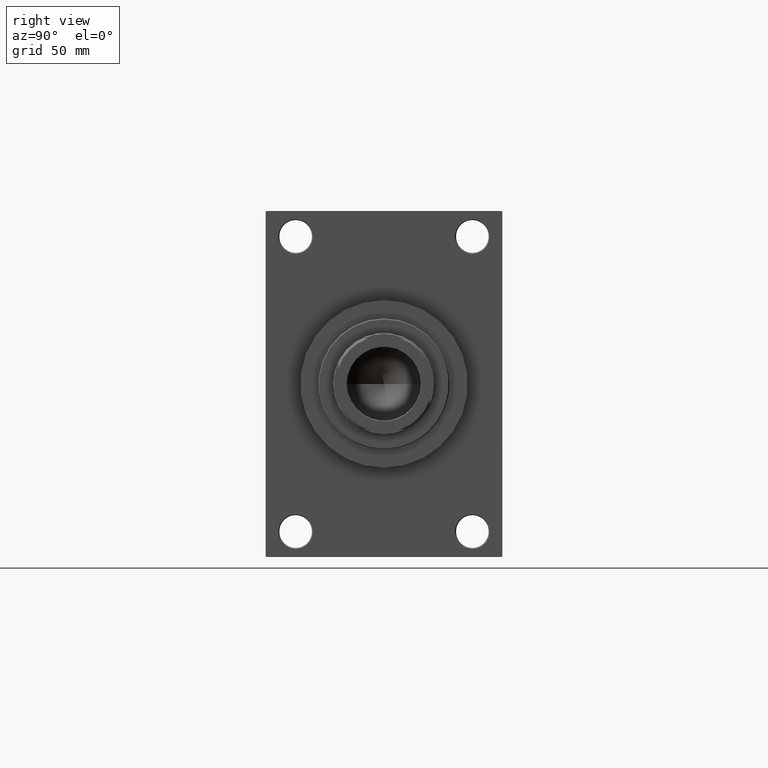
[diagram: clean part render]
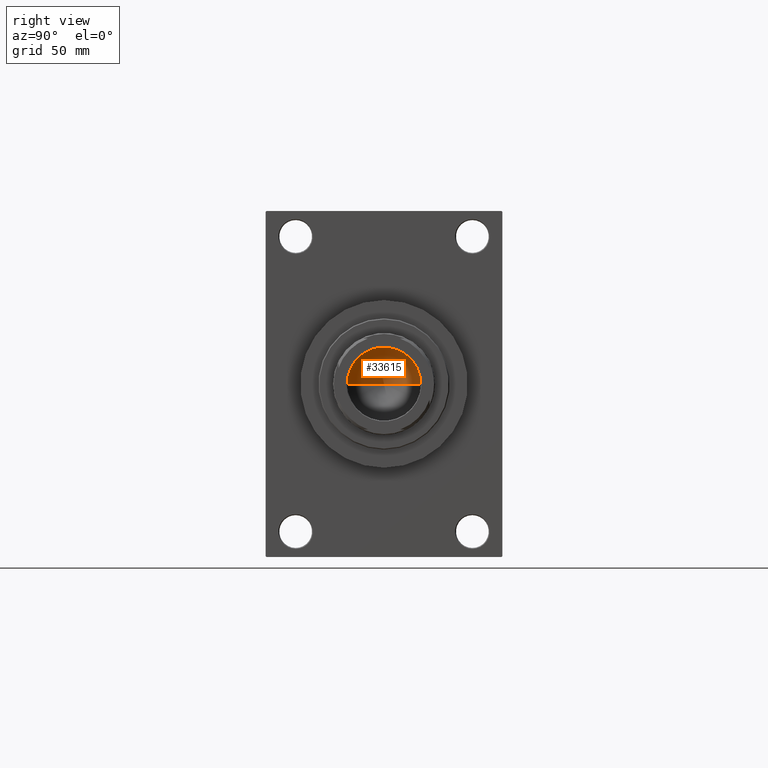
[diagram: same view with one face highlighted and labeled with its STEP entity id]
A machine part, right view. The second image highlights one B-rep face of the part: STEP entity #33615.
In plain terms, the highlighted conical surface has half-angle 59 deg.
Its self-contained STEP definition (entity closure, byte-faithful):
#864 = VERTEX_POINT ( 'NONE', #22181 ) ;
#3777 = CARTESIAN_POINT ( 'NONE',  ( -20.24999999999998934, 2.479909768273389117E-15, 203.0000000000000000 ) ) ;
#4602 = VERTEX_POINT ( 'NONE', #8449 ) ;
#7018 = FACE_OUTER_BOUND ( 'NONE', #34296, .T. ) ;
#8449 = CARTESIAN_POINT ( 'NONE',  ( -20.24999999999998934, 2.479909768273389117E-15, 203.0000000000000000 ) ) ;
#9550 = AXIS2_PLACEMENT_3D ( 'NONE', #39862, #39628, #13573 ) ;
#11031 = DIRECTION ( 'NONE',  ( -0.8571673007021112234, 1.049727191138617340E-16, 0.5150380749100560429 ) ) ;
#11272 = LINE ( 'NONE', #3777, #35624 ) ;
#11504 = VECTOR ( 'NONE', #15435, 1000.000000000000000 ) ;
#11822 = CONICAL_SURFACE ( 'NONE', #47267, 20.24999999999998934, 1.029744258676652313 ) ;
#13573 = DIRECTION ( 'NONE',  ( 1.000000000000000000, 0.000000000000000000, 0.000000000000000000 ) ) ;
#15435 = DIRECTION ( 'NONE',  ( 0.8571673007021112234, 0.000000000000000000, 0.5150380749100560429 ) ) ;
#19593 = CIRCLE ( 'NONE', #9550, 20.24999999999998934 ) ;
#21042 = ORIENTED_EDGE ( 'NONE', *, *, #31275, .T. ) ;
#21207 = ORIENTED_EDGE ( 'NONE', *, *, #27628, .T. ) ;
#22181 = CARTESIAN_POINT ( 'NONE',  ( 20.24999999999998934, 0.000000000000000000, 203.0000000000000000 ) ) ;
#22711 = DIRECTION ( 'NONE',  ( 1.000000000000000000, 0.000000000000000000, 0.000000000000000000 ) ) ;
#24663 = CARTESIAN_POINT ( 'NONE',  ( 0.000000000000000000, 0.000000000000000000, 203.0000000000000000 ) ) ;
#26316 = CARTESIAN_POINT ( 'NONE',  ( -1.584115414415908206E-14, 0.000000000000000000, 190.8325724646918786 ) ) ;
#26863 = ORIENTED_EDGE ( 'NONE', *, *, #47089, .F. ) ;
#27628 = EDGE_CURVE ( 'NONE', #40324, #4602, #11272, .T. ) ;
#31275 = EDGE_CURVE ( 'NONE', #4602, #864, #19593, .T. ) ;
#33615 = ADVANCED_FACE ( 'NONE', ( #7018 ), #11822, .F. ) ;
#33773 = CARTESIAN_POINT ( 'NONE',  ( 20.24999999999998934, 0.000000000000000000, 203.0000000000000000 ) ) ;
#34296 = EDGE_LOOP ( 'NONE', ( #26863, #21207, #21042 ) ) ;
#35624 = VECTOR ( 'NONE', #11031, 1000.000000000000000 ) ;
#36421 = LINE ( 'NONE', #33773, #11504 ) ;
#39389 = DIRECTION ( 'NONE',  ( -0.000000000000000000, -0.000000000000000000, 1.000000000000000000 ) ) ;
#39628 = DIRECTION ( 'NONE',  ( -0.000000000000000000, -0.000000000000000000, 1.000000000000000000 ) ) ;
#39862 = CARTESIAN_POINT ( 'NONE',  ( 0.000000000000000000, 0.000000000000000000, 203.0000000000000000 ) ) ;
#40324 = VERTEX_POINT ( 'NONE', #26316 ) ;
#47089 = EDGE_CURVE ( 'NONE', #40324, #864, #36421, .T. ) ;
#47267 = AXIS2_PLACEMENT_3D ( 'NONE', #24663, #39389, #22711 ) ;